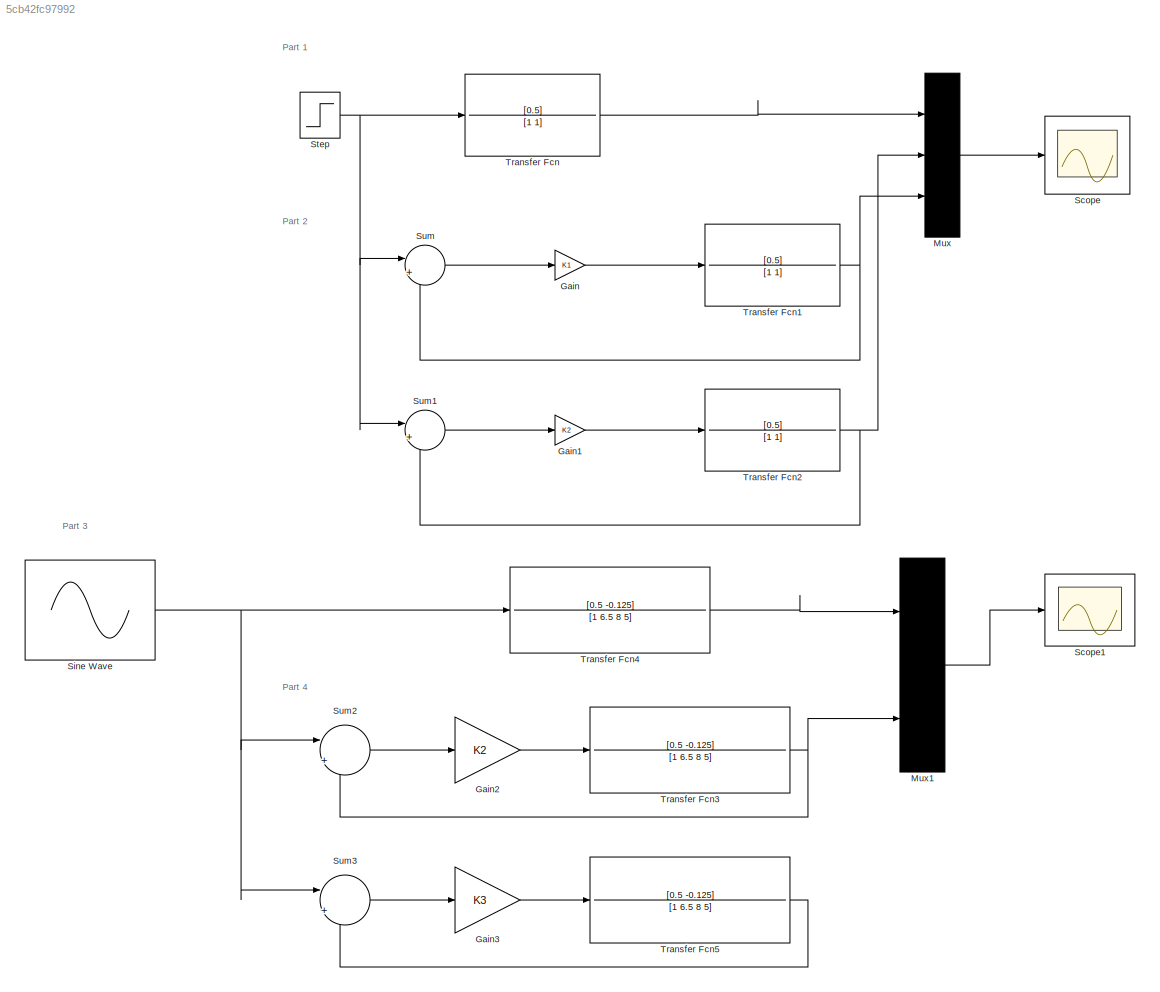
MODEL slx_5cb42fc97992
KIND model
CONFIG AbsTol = auto
CONFIG EnableMultiTasking = off
CONFIG FixedStep = auto
CONFIG MaxStep = auto
CONFIG MinStep = auto
CONFIG RelTol = 1e-3
CONFIG SampleTimeConstraint = Unconstrained
CONFIG Solver = VariableStepAuto
CONFIG SolverName = VariableStepAuto
CONFIG StartTime = 0.0
CONFIG StopTime = 60
BLOCK [Gain] Gain
  Gain = K1
  OutDataTypeStr = Inherit: Inherit via internal rule
  ParamDataTypeStr = Inherit: Inherit via internal rule
  SaturateOnIntegerOverflow = off
BLOCK [Gain] Gain1
  Gain = K2
  OutDataTypeStr = Inherit: Inherit via internal rule
  ParamDataTypeStr = Inherit: Inherit via internal rule
  SaturateOnIntegerOverflow = off
BLOCK [Gain] Gain2
  Gain = K2
  OutDataTypeStr = Inherit: Inherit via internal rule
  ParamDataTypeStr = Inherit: Inherit via internal rule
  SaturateOnIntegerOverflow = off
BLOCK [Gain] Gain3
  Gain = K3
  OutDataTypeStr = Inherit: Inherit via internal rule
  ParamDataTypeStr = Inherit: Inherit via internal rule
  SaturateOnIntegerOverflow = off
BLOCK [Mux] Mux
  DisplayOption = bar
  Inputs = 3
  Ports = [3, 1]
BLOCK [Mux] Mux1
  DisplayOption = bar
  Inputs = 3
  Ports = [3, 1]
BLOCK [Scope] Scope
  NumInputPorts = 1
  Ports = [1]
  ScopeSpecificationString = Simulink.scopes.TimeScopeBlockCfg('CurrentConfiguration', extmgr.ConfigurationSet(extmgr.Configuration('Core','General UI',true),extmgr.Configuration('Core','Source UI',true),extmgr.Configuration('Sources','WiredSimulink',true),extmgr.Configuration('Visuals','Time Domain',true,'SerializedDisplays',{struct('MinYLimReal','-0.10417','MaxYLimReal','0.9375','YLabelReal','','MinYLimMag','0.00000','MaxYL...<+1411ch>
BLOCK [Scope] Scope1
  NumInputPorts = 1
  Ports = [1]
  ScopeSpecificationString = Simulink.scopes.TimeScopeBlockCfg('CurrentConfiguration', extmgr.ConfigurationSet(extmgr.Configuration('Core','General UI',true),extmgr.Configuration('Core','Source UI',true),extmgr.Configuration('Sources','WiredSimulink',true,'DataLoggingVariableName','ScopeData1'),extmgr.Configuration('Visuals','Time Domain',true,'SerializedDisplays',{struct('MinYLimReal','-0.27551','MaxYLimReal','0.27214','YLab...<+1453ch>
BLOCK [Sin] Sine Wave
  Frequency = 0.1
  Ports = [0, 1]
  SampleTime = 0
BLOCK [Step] Step
  SampleTime = 0
  Time = 0
BLOCK [Sum] Sum
  IconShape = round
  InputSameDT = off
  Inputs = |+-
  OutDataTypeStr = Inherit: Inherit via internal rule
  Ports = [2, 1]
  SaturateOnIntegerOverflow = off
BLOCK [Sum] Sum1
  IconShape = round
  InputSameDT = off
  Inputs = |+-
  OutDataTypeStr = Inherit: Inherit via internal rule
  Ports = [2, 1]
  SaturateOnIntegerOverflow = off
BLOCK [Sum] Sum2
  IconShape = round
  InputSameDT = off
  Inputs = |++
  OutDataTypeStr = Inherit: Inherit via internal rule
  Ports = [2, 1]
  SaturateOnIntegerOverflow = off
BLOCK [Sum] Sum3
  IconShape = round
  InputSameDT = off
  Inputs = |++
  OutDataTypeStr = Inherit: Inherit via internal rule
  Ports = [2, 1]
  SaturateOnIntegerOverflow = off
BLOCK [TransferFcn] Transfer Fcn
  Denominator = [1 1]
  Numerator = [0.5]
BLOCK [TransferFcn] Transfer Fcn1
  Denominator = [1 1]
  Numerator = [0.5]
BLOCK [TransferFcn] Transfer Fcn2
  Denominator = [1 1]
  Numerator = [0.5]
BLOCK [TransferFcn] Transfer Fcn3
  Denominator = [1 6.5 8 5]
  Numerator = [0.5 -0.125]
BLOCK [TransferFcn] Transfer Fcn4
  Denominator = [1 6.5 8 5]
  Numerator = [0.5 -0.125]
BLOCK [TransferFcn] Transfer Fcn5
  Denominator = [1 6.5 8 5]
  Numerator = [0.5 -0.125]
ANNOTATION (root): Part 1
ANNOTATION (root): Part 2
ANNOTATION (root): Part 3
ANNOTATION (root): Part 4
LINE Gain1:1 -> Transfer Fcn2:1
LINE Gain2:1 -> Transfer Fcn3:1
LINE Gain3:1 -> Transfer Fcn5:1
LINE Gain:1 -> Transfer Fcn1:1
LINE Mux1:1 -> Scope1:1
LINE Mux:1 -> Scope:1
NET Sine Wave:1 -> Sum2:1, Sum3:1, Transfer Fcn4:1
NET Step:1 -> Sum1:1, Sum:1, Transfer Fcn:1
LINE Sum1:1 -> Gain1:1
LINE Sum2:1 -> Gain2:1
LINE Sum3:1 -> Gain3:1
LINE Sum:1 -> Gain:1
NET Transfer Fcn1:1 -> Mux:3, Sum:2
NET Transfer Fcn2:1 -> Mux:2, Sum1:2
NET Transfer Fcn3:1 -> Mux1:3, Sum2:2
LINE Transfer Fcn4:1 -> Mux1:1
LINE Transfer Fcn5:1 -> Sum3:2
LINE Transfer Fcn:1 -> Mux:1
note: NET lines group one-source signal fan-out (src -> all destinations, sorted); 1:1 wires keep LINE
